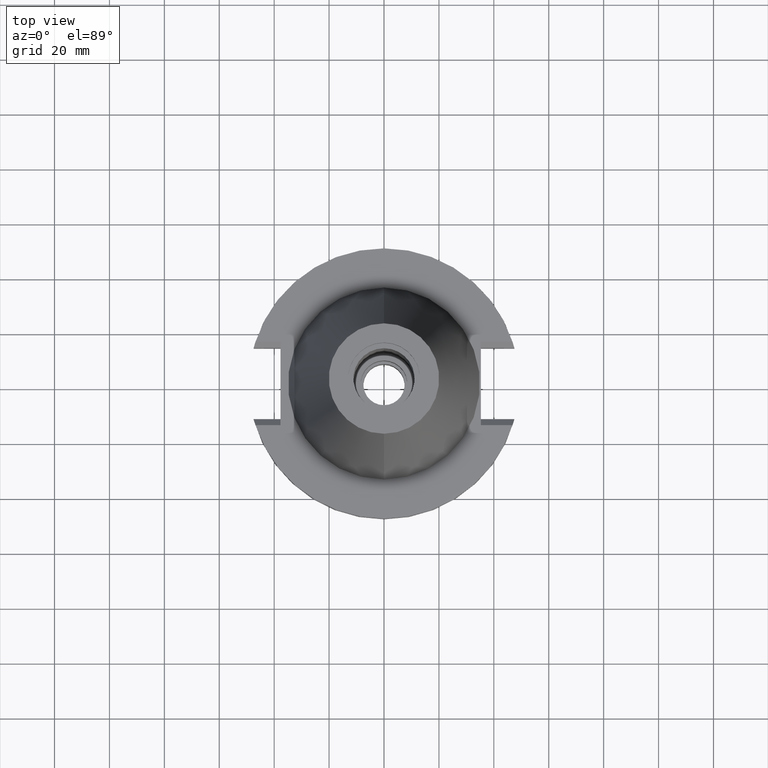
[diagram: clean part render]
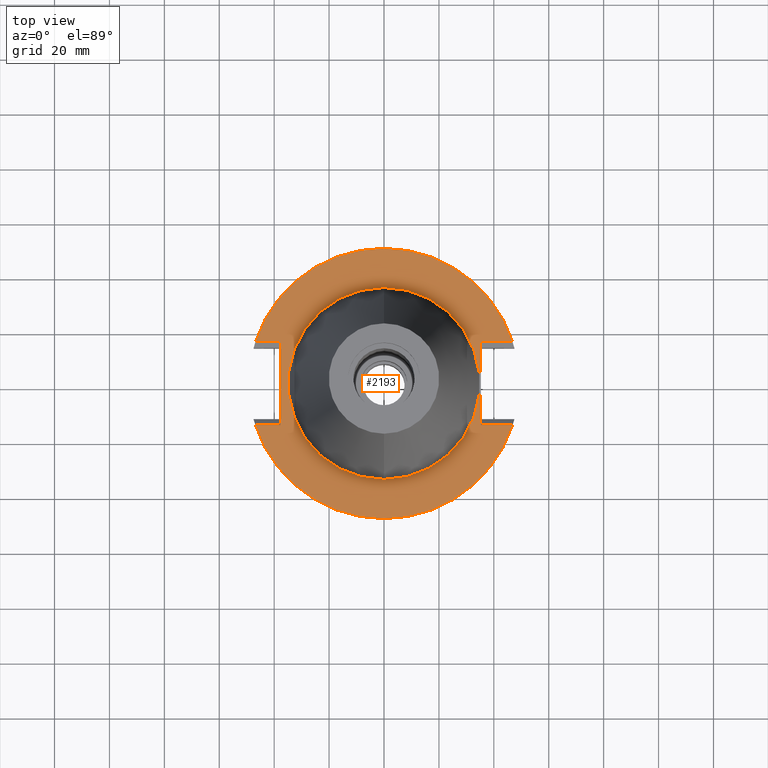
[diagram: same view with one face highlighted and labeled with its STEP entity id]
A machine part, top view. The second image highlights one B-rep face of the part: STEP entity #2193.
In plain terms, the highlighted planar face has unit normal (0, 0, -1).
Its self-contained STEP definition (entity closure, byte-faithful):
#729=DIRECTION('',(1.E0,0.E0,0.E0));
#730=VECTOR('',#729,1.155089417397E1);
#731=CARTESIAN_POINT('',(3.527E1,1.5155E1,-1.5E0));
#732=LINE('',#731,#730);
#746=CARTESIAN_POINT('',(4.682089417397E1,1.5155E1,-1.5E0));
#766=DIRECTION('',(0.E0,-1.E0,0.E0));
#767=VECTOR('',#766,3.031E1);
#768=CARTESIAN_POINT('',(3.527E1,1.5155E1,-1.5E0));
#769=LINE('',#768,#767);
#773=DIRECTION('',(1.E0,0.E0,0.E0));
#774=VECTOR('',#773,1.155089417397E1);
#775=CARTESIAN_POINT('',(3.527E1,-1.5155E1,-1.5E0));
#776=LINE('',#775,#774);
#780=CARTESIAN_POINT('',(0.E0,2.608865076224E-14,-1.5E0));
#781=DIRECTION('',(0.E0,0.E0,-1.E0));
#782=DIRECTION('',(9.514024724200E-1,-3.079502159004E-1,0.E0));
#783=AXIS2_PLACEMENT_3D('',#780,#781,#782);
#788=CARTESIAN_POINT('',(0.E0,2.608865076224E-14,-1.5E0));
#789=DIRECTION('',(0.E0,0.E0,-1.E0));
#790=DIRECTION('',(0.E0,-1.E0,0.E0));
#791=AXIS2_PLACEMENT_3D('',#788,#789,#790);
#796=DIRECTION('',(0.E0,1.E0,0.E0));
#797=VECTOR('',#796,3.031E1);
#798=CARTESIAN_POINT('',(-3.768E1,-1.5155E1,-1.5E0));
#799=LINE('',#798,#797);
#803=DIRECTION('',(-1.E0,-1.049386061166E-14,0.E0));
#804=VECTOR('',#803,9.140894173969E0);
#805=CARTESIAN_POINT('',(-3.768E1,1.5155E1,-1.5E0));
#806=LINE('',#805,#804);
#810=CARTESIAN_POINT('',(0.E0,2.608865076224E-14,-1.5E0));
#811=DIRECTION('',(0.E0,0.E0,-1.E0));
#812=DIRECTION('',(-9.514024724200E-1,3.079502159004E-1,0.E0));
#813=AXIS2_PLACEMENT_3D('',#810,#811,#812);
#818=CARTESIAN_POINT('',(0.E0,2.608865076224E-14,-1.5E0));
#819=DIRECTION('',(0.E0,0.E0,-1.E0));
#820=DIRECTION('',(0.E0,1.E0,0.E0));
#821=AXIS2_PLACEMENT_3D('',#818,#819,#820);
#826=CARTESIAN_POINT('',(0.E0,2.608865076224E-14,-1.5E0));
#827=DIRECTION('',(0.E0,0.E0,1.E0));
#828=DIRECTION('',(0.E0,-1.E0,0.E0));
#829=AXIS2_PLACEMENT_3D('',#826,#827,#828);
#834=CARTESIAN_POINT('',(0.E0,2.608865076224E-14,-1.5E0));
#835=DIRECTION('',(0.E0,0.E0,1.E0));
#836=DIRECTION('',(0.E0,1.E0,0.E0));
#837=AXIS2_PLACEMENT_3D('',#834,#835,#836);
#842=CARTESIAN_POINT('',(4.682089417397E1,-1.5155E1,-1.5E0));
#867=CARTESIAN_POINT('',(-4.682089417397E1,-1.5155E1,-1.5E0));
#1036=DIRECTION('',(-1.E0,1.049386061166E-14,0.E0));
#1037=VECTOR('',#1036,9.140894173969E0);
#1038=CARTESIAN_POINT('',(-3.768E1,-1.5155E1,-1.5E0));
#1039=LINE('',#1038,#1037);
#1360=CARTESIAN_POINT('',(3.527E1,-1.5155E1,-1.5E0));
#1361=VERTEX_POINT('',#1360);
#1362=CARTESIAN_POINT('',(3.527E1,1.5155E1,-1.5E0));
#1363=VERTEX_POINT('',#1362);
#1403=CARTESIAN_POINT('',(-3.768E1,1.5155E1,-1.5E0));
#1404=VERTEX_POINT('',#1403);
#1405=CARTESIAN_POINT('',(-3.768E1,-1.5155E1,-1.5E0));
#1406=VERTEX_POINT('',#1405);
#1449=VERTEX_POINT('',#842);
#1450=VERTEX_POINT('',#867);
#1451=CARTESIAN_POINT('',(-6.280856145559E-14,-4.92125E1,-1.5E0));
#1452=VERTEX_POINT('',#1451);
#1455=VERTEX_POINT('',#746);
#1456=CARTESIAN_POINT('',(0.E0,4.92125E1,-1.5E0));
#1457=VERTEX_POINT('',#1456);
#1458=CARTESIAN_POINT('',(-4.682089417397E1,1.5155E1,-1.5E0));
#1459=VERTEX_POINT('',#1458);
#1460=CARTESIAN_POINT('',(0.E0,-3.4925E1,-1.5E0));
#1461=CARTESIAN_POINT('',(0.E0,3.4925E1,-1.5E0));
#1462=VERTEX_POINT('',#1460);
#1463=VERTEX_POINT('',#1461);
#2165=CARTESIAN_POINT('',(0.E0,1.206277097160E-14,-1.5E0));
#2166=DIRECTION('',(0.E0,0.E0,-1.E0));
#2167=DIRECTION('',(0.E0,-1.E0,0.E0));
#2168=AXIS2_PLACEMENT_3D('',#2165,#2166,#2167);
#2169=PLANE('',#2168);
#2170=ORIENTED_EDGE('',*,*,#1960,.T.);
#2172=ORIENTED_EDGE('',*,*,#2171,.T.);
#2174=ORIENTED_EDGE('',*,*,#2173,.T.);
#2176=ORIENTED_EDGE('',*,*,#2175,.T.);
#2178=ORIENTED_EDGE('',*,*,#2177,.F.);
#2179=ORIENTED_EDGE('',*,*,#2048,.T.);
#2181=ORIENTED_EDGE('',*,*,#2180,.T.);
#2182=ORIENTED_EDGE('',*,*,#2153,.T.);
#2183=ORIENTED_EDGE('',*,*,#2151,.T.);
#2184=ORIENTED_EDGE('',*,*,#2139,.F.);
#2185=EDGE_LOOP('',(#2170,#2172,#2174,#2176,#2178,#2179,#2181,#2182,#2183,
#2184));
#2186=FACE_OUTER_BOUND('',#2185,.F.);
#2188=ORIENTED_EDGE('',*,*,#2187,.T.);
#2190=ORIENTED_EDGE('',*,*,#2189,.T.);
#2191=EDGE_LOOP('',(#2188,#2190));
#2192=FACE_BOUND('',#2191,.F.);
#784=CIRCLE('',#783,4.92125E1);
#792=CIRCLE('',#791,4.92125E1);
#814=CIRCLE('',#813,4.92125E1);
#822=CIRCLE('',#821,4.92125E1);
#830=CIRCLE('',#829,3.4925E1);
#838=CIRCLE('',#837,3.4925E1);
#1960=EDGE_CURVE('',#1363,#1361,#769,.T.);
#2048=EDGE_CURVE('',#1406,#1404,#799,.T.);
#2139=EDGE_CURVE('',#1363,#1455,#732,.T.);
#2151=EDGE_CURVE('',#1457,#1455,#822,.T.);
#2153=EDGE_CURVE('',#1459,#1457,#814,.T.);
#2171=EDGE_CURVE('',#1361,#1449,#776,.T.);
#2173=EDGE_CURVE('',#1449,#1452,#784,.T.);
#2175=EDGE_CURVE('',#1452,#1450,#792,.T.);
#2177=EDGE_CURVE('',#1406,#1450,#1039,.T.);
#2180=EDGE_CURVE('',#1404,#1459,#806,.T.);
#2187=EDGE_CURVE('',#1462,#1463,#830,.T.);
#2189=EDGE_CURVE('',#1463,#1462,#838,.T.);
#2193=ADVANCED_FACE('',(#2186,#2192),#2169,.F.);